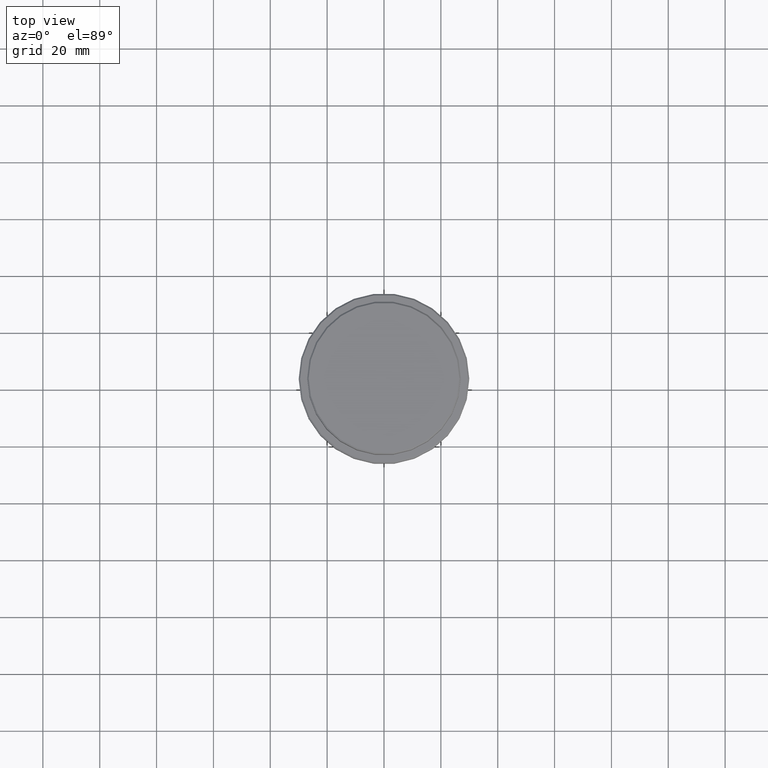
[diagram: clean part render]
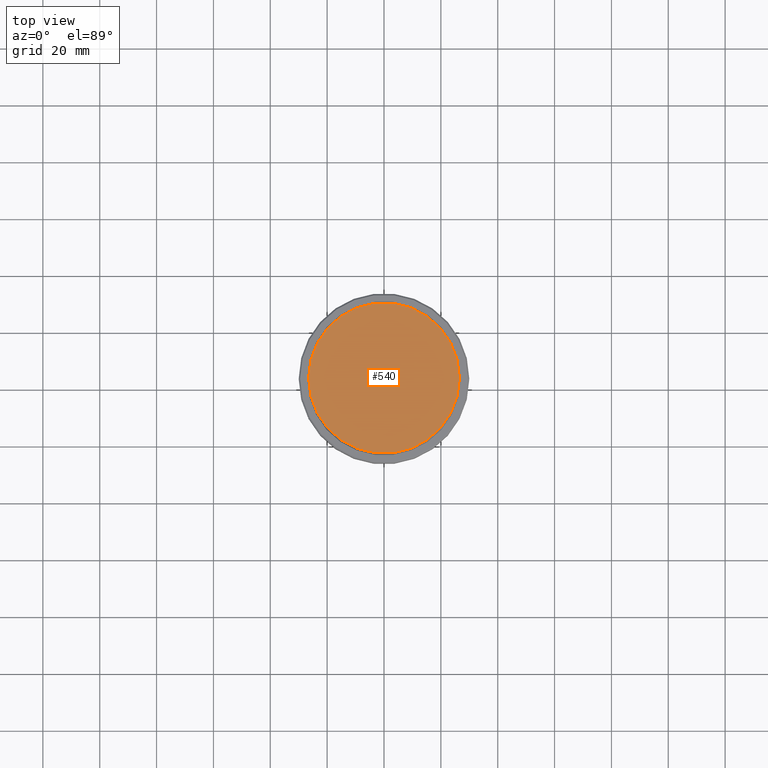
[diagram: same view with one face highlighted and labeled with its STEP entity id]
A machine part, top view. The second image highlights one B-rep face of the part: STEP entity #540.
In plain terms, the highlighted planar face has unit normal (0, -0, 1).
Its self-contained STEP definition (entity closure, byte-faithful):
#42 = VERTEX_POINT ( 'NONE', #587 ) ;
#56 = DIRECTION ( 'NONE',  ( -0.000000000000000000, -0.000000000000000000, 1.000000000000000000 ) ) ;
#147 = CARTESIAN_POINT ( 'NONE',  ( 0.000000000000000000, 0.000000000000000000, 0.000000000000000000 ) ) ;
#438 = VERTEX_POINT ( 'NONE', #458 ) ;
#448 = CIRCLE ( 'NONE', #1223, 26.49999999999996803 ) ;
#458 = CARTESIAN_POINT ( 'NONE',  ( 26.49999999999996803, 3.275930187719167580E-15, 0.000000000000000000 ) ) ;
#479 = ORIENTED_EDGE ( 'NONE', *, *, #1374, .T. ) ;
#540 = ADVANCED_FACE ( 'NONE', ( #746 ), #1211, .T. ) ;
#578 = CARTESIAN_POINT ( 'NONE',  ( 0.000000000000000000, 0.000000000000000000, 0.000000000000000000 ) ) ;
#587 = CARTESIAN_POINT ( 'NONE',  ( -26.49999999999996803, 0.000000000000000000, 0.000000000000000000 ) ) ;
#704 = ORIENTED_EDGE ( 'NONE', *, *, #930, .T. ) ;
#736 = EDGE_LOOP ( 'NONE', ( #704, #479 ) ) ;
#746 = FACE_OUTER_BOUND ( 'NONE', #736, .T. ) ;
#803 = AXIS2_PLACEMENT_3D ( 'NONE', #147, #56, #1254 ) ;
#839 = CARTESIAN_POINT ( 'NONE',  ( 0.000000000000000000, 0.000000000000000000, 0.000000000000000000 ) ) ;
#930 = EDGE_CURVE ( 'NONE', #42, #438, #1192, .T. ) ;
#991 = DIRECTION ( 'NONE',  ( 1.000000000000000000, 0.000000000000000000, 0.000000000000000000 ) ) ;
#1035 = DIRECTION ( 'NONE',  ( -0.000000000000000000, -0.000000000000000000, 1.000000000000000000 ) ) ;
#1075 = DIRECTION ( 'NONE',  ( 1.000000000000000000, 0.000000000000000000, 0.000000000000000000 ) ) ;
#1192 = CIRCLE ( 'NONE', #803, 26.49999999999996803 ) ;
#1211 = PLANE ( 'NONE',  #1324 ) ;
#1223 = AXIS2_PLACEMENT_3D ( 'NONE', #578, #1035, #1075 ) ;
#1227 = DIRECTION ( 'NONE',  ( 0.000000000000000000, -0.000000000000000000, 1.000000000000000000 ) ) ;
#1254 = DIRECTION ( 'NONE',  ( 1.000000000000000000, 0.000000000000000000, 0.000000000000000000 ) ) ;
#1324 = AXIS2_PLACEMENT_3D ( 'NONE', #839, #1227, #991 ) ;
#1374 = EDGE_CURVE ( 'NONE', #438, #42, #448, .T. ) ;